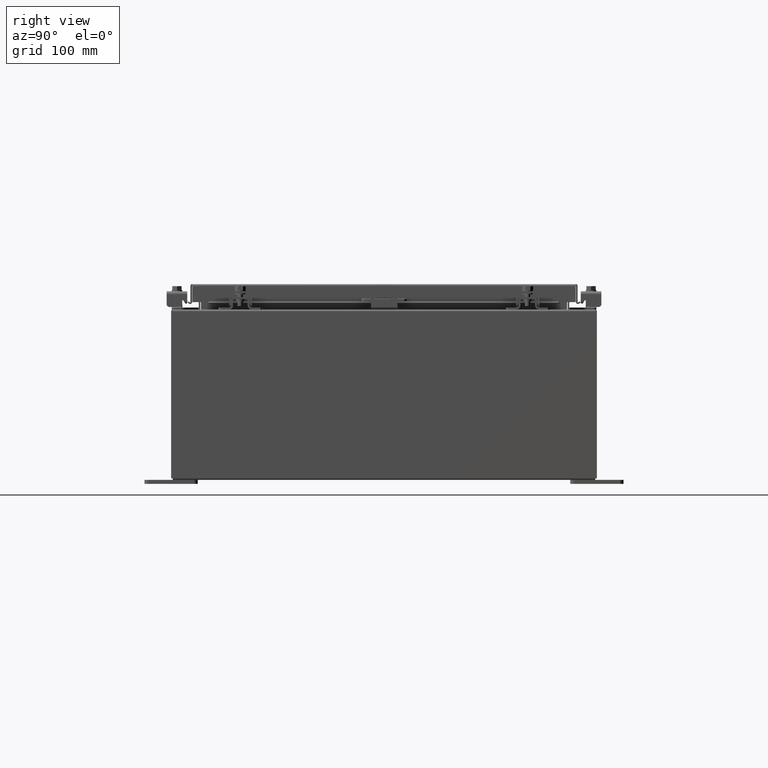
[diagram: clean part render]
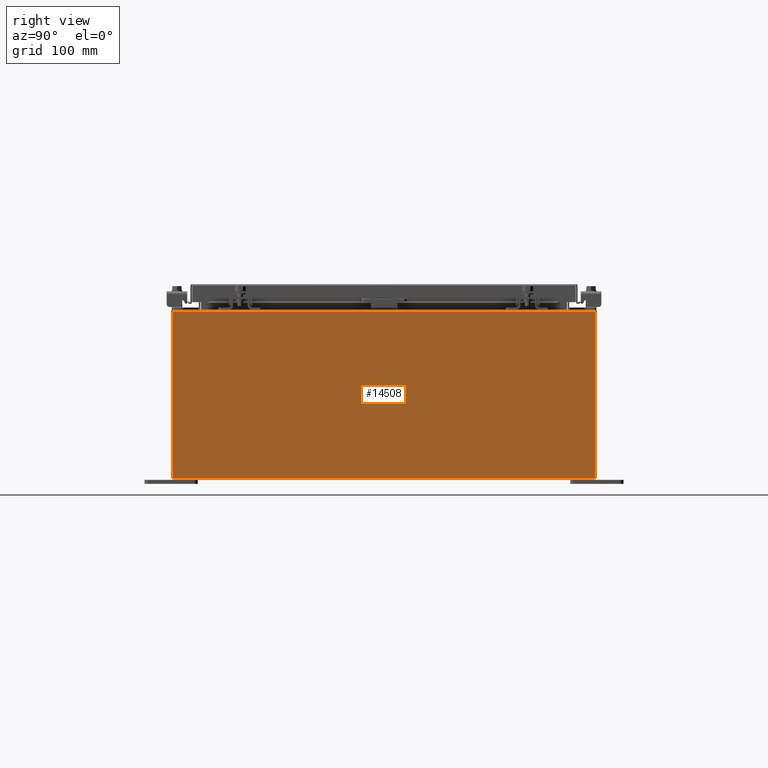
[diagram: same view with one face highlighted and labeled with its STEP entity id]
A machine part, right view. The second image highlights one B-rep face of the part: STEP entity #14508.
In plain terms, the highlighted planar face has unit normal (-1, 0, 0).
Its self-contained STEP definition (entity closure, byte-faithful):
#606 = LINE ( 'NONE', #5054, #1300 ) ;
#694 = LINE ( 'NONE', #2678, #1387 ) ;
#742 = PLANE ( 'NONE',  #29439 ) ;
#1300 = VECTOR ( 'NONE', #25589, 39.37007874015748100 ) ;
#1387 = VECTOR ( 'NONE', #25350, 39.37007874015748100 ) ;
#1465 = EDGE_CURVE ( 'NONE', #26673, #19583, #14295, .T. ) ;
#2678 = CARTESIAN_POINT ( 'NONE',  ( 11.99999999999999800, -9.925300000000000000, -4.601632553852868400E-014 ) ) ;
#5054 = CARTESIAN_POINT ( 'NONE',  ( 12.00000000000002700, 9.925299999999992900, 7.837599999999999200 ) ) ;
#5367 = DIRECTION ( 'NONE',  ( -1.000000000000000000, 0.0000000000000000000, 3.584876173029202900E-015 ) ) ;
#5849 = FACE_OUTER_BOUND ( 'NONE', #8354, .T. ) ;
#7076 = CARTESIAN_POINT ( 'NONE',  ( 11.99999999999999800, -9.925300000000000000, 0.01299999999999983600 ) ) ;
#7305 = VERTEX_POINT ( 'NONE', #13371 ) ;
#7375 = CARTESIAN_POINT ( 'NONE',  ( 11.99999999999999800, 9.925300000000000000, -4.054232992619533500E-014 ) ) ;
#8354 = EDGE_LOOP ( 'NONE', ( #18407, #23362, #14369, #9637 ) ) ;
#9637 = ORIENTED_EDGE ( 'NONE', *, *, #13065, .T. ) ;
#9864 = LINE ( 'NONE', #7375, #26617 ) ;
#11772 = CARTESIAN_POINT ( 'NONE',  ( 11.99999999999999800, 9.925299999999998200, 0.01299999999999984700 ) ) ;
#12473 = DIRECTION ( 'NONE',  ( -0.0000000000000000000, -1.000000000000000000, -0.0000000000000000000 ) ) ;
#13065 = EDGE_CURVE ( 'NONE', #26673, #19716, #9864, .T. ) ;
#13371 = CARTESIAN_POINT ( 'NONE',  ( 12.00000000000002700, -9.925300000000001800, 7.837599999999999200 ) ) ;
#13574 = VECTOR ( 'NONE', #12473, 39.37007874015748100 ) ;
#14295 = LINE ( 'NONE', #18856, #13574 ) ;
#14345 = CARTESIAN_POINT ( 'NONE',  ( 12.00000000000002700, 9.925299999999991100, 7.837599999999999200 ) ) ;
#14369 = ORIENTED_EDGE ( 'NONE', *, *, #1465, .F. ) ;
#14508 = ADVANCED_FACE ( 'NONE', ( #5849 ), #742, .F. ) ;
#18407 = ORIENTED_EDGE ( 'NONE', *, *, #20322, .T. ) ;
#18792 = EDGE_CURVE ( 'NONE', #7305, #19583, #694, .T. ) ;
#18856 = CARTESIAN_POINT ( 'NONE',  ( 11.99999999999999800, -9.925300000000001800, 0.01299999999999984700 ) ) ;
#19583 = VERTEX_POINT ( 'NONE', #7076 ) ;
#19716 = VERTEX_POINT ( 'NONE', #14345 ) ;
#20322 = EDGE_CURVE ( 'NONE', #19716, #7305, #606, .T. ) ;
#21035 = DIRECTION ( 'NONE',  ( 3.584876173029202900E-015, -2.757597056176310300E-016, 1.000000000000000000 ) ) ;
#21313 = DIRECTION ( 'NONE',  ( 3.584876173029202900E-015, 0.0000000000000000000, 1.000000000000000000 ) ) ;
#23362 = ORIENTED_EDGE ( 'NONE', *, *, #18792, .T. ) ;
#23500 = CARTESIAN_POINT ( 'NONE',  ( 11.99999999999999800, 0.0000000000000000000, -4.327932773236200600E-014 ) ) ;
#25350 = DIRECTION ( 'NONE',  ( -3.584876173029202900E-015, 2.757597056176310300E-016, -1.000000000000000000 ) ) ;
#25589 = DIRECTION ( 'NONE',  ( -0.0000000000000000000, -1.000000000000000000, -0.0000000000000000000 ) ) ;
#26617 = VECTOR ( 'NONE', #21035, 39.37007874015748100 ) ;
#26673 = VERTEX_POINT ( 'NONE', #11772 ) ;
#29439 = AXIS2_PLACEMENT_3D ( 'NONE', #23500, #5367, #21313 ) ;